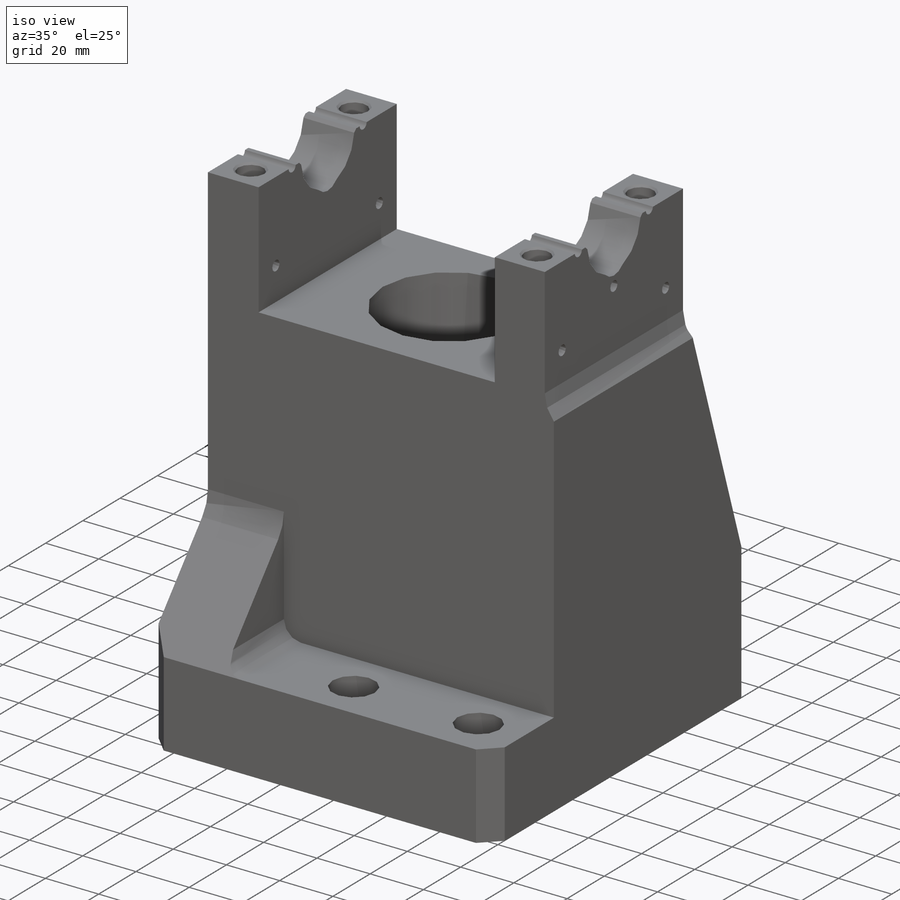
[diagram: iso view]
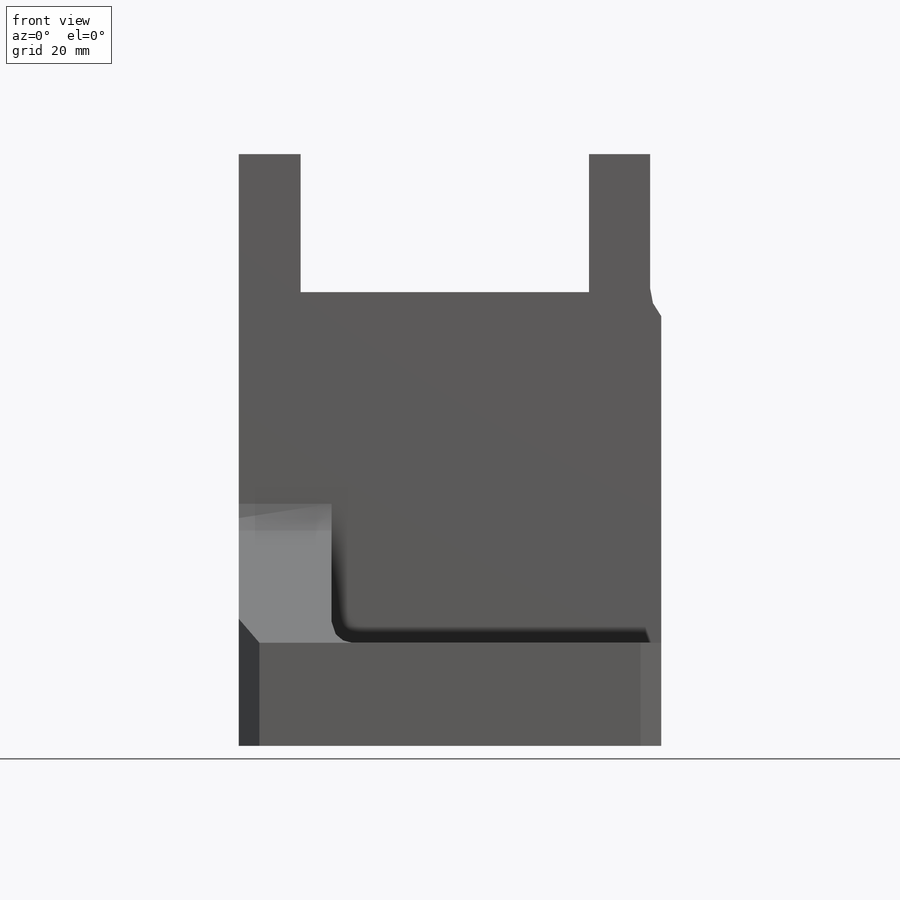
[diagram: front view]
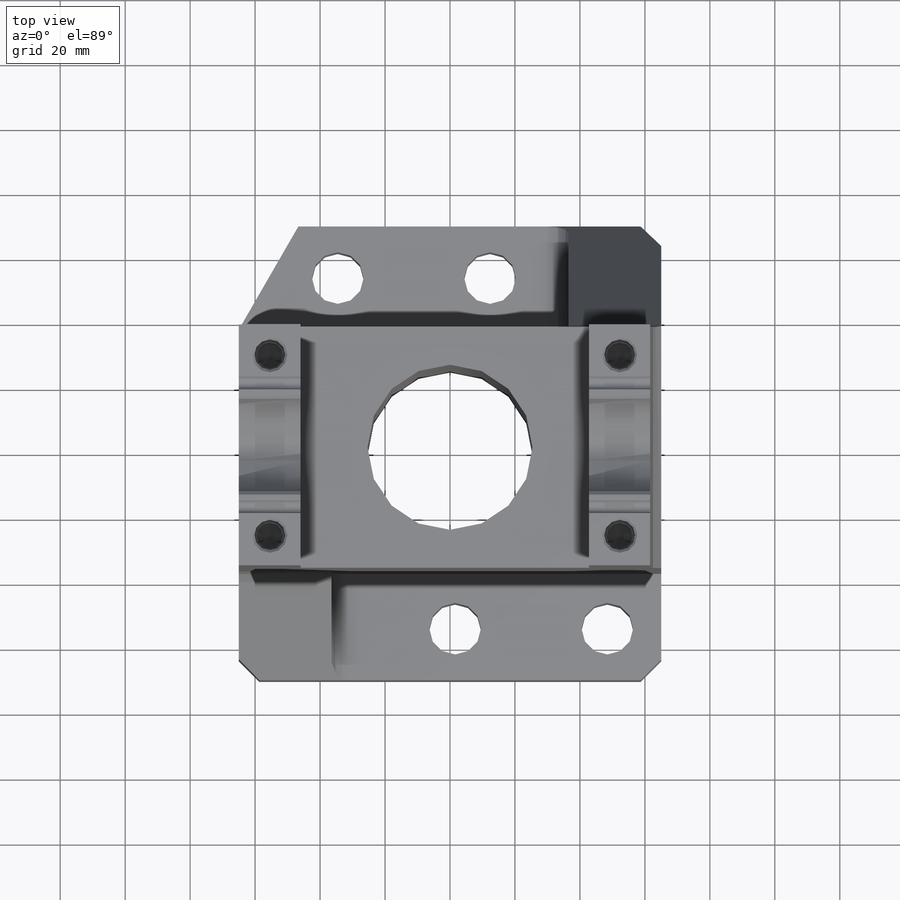
[diagram: top view]
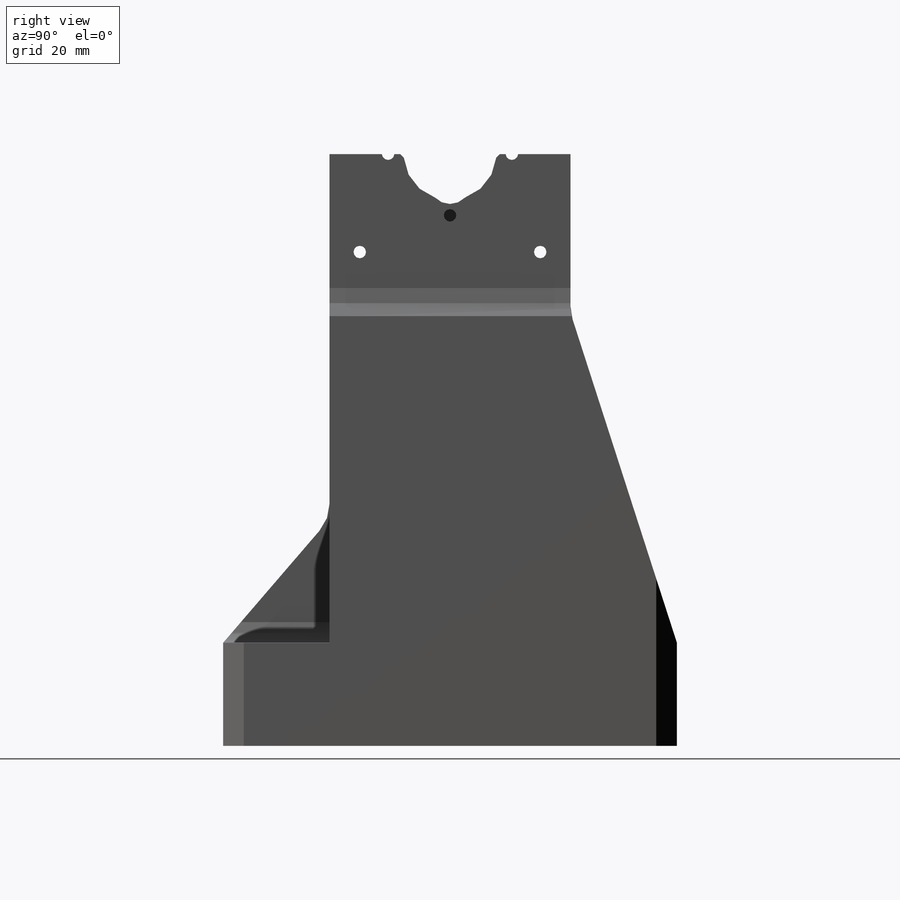
[diagram: right view]
SOLIDWORKS PART (.sldprt)
format: sldprt  version: not decoded by parser v0  size: 566,784 bytes
history: native  units: mm
features: sketch x17, hole x5, cut_extrude x4, extrude x3, chamfer x3, fillet x2, material x1 + 1 further entry (+13 scaffold rows collapsed)
feature tree (49):
  scaffold x13  (default folders/planes/origin — collapsed)
  material  "2024-T351 AL"
  "Origin"  ID=-1
  sketch  "Sketch2"  dims[c1.D1=28.575mm c1.D3=28.575mm c1.D7=14.2875mm c1.D6=14.2875mm c1.D2=0.127mm c2.D3=37.084mm c2.D4=37.084mm c2.D5=150.5712mm c2.D6=182.3212mm c2.D7=69.85mm c3.D5=31.75mm c3.D6=182.3212mm]
  extrude  "Extrude1"  Depth=130.048mm
  sketch  "Sketch3"  dims[D1=50.8mm]
  cut_extrude  "Extrude2"  [1 undecoded]
  sketch  "Sketch4"  dims[D1=101.6mm]
  extrude  "Extrude3"  Depth=28.575mm
  sketch  "Sketch7"  dims[D1=38.1mm]
  extrude  "Extrude4"  Depth=28.575mm
  sketch  "Sketch8"  dims[c1.D1=139.7mm c1.D2=~64.098159mm c1.D3=19.05mm c1.D4=~46.899841mm c2.D2=88.773mm]
  cut_extrude  "Extrude5"  [1 undecoded]
  hole  "5/8 (0.625) Diameter Hole1"  Diameter=15.875mm Depth=182.1942mm
  sketch  "Sketch10"  dims[c1.D1=15.875mm c1.D2=107.95mm c2.D1=53.975mm c2.D2=53.975mm c2.D3=30.48mm c2.D4=46.863mm c2.D5=36.1188mm]
  sketch  "Sketch9"  dims[hole-wizard template sketch: 60 standard entries collapsed; hole parameters kept: c18.Thru Hole Depth=182.1942mm]
  sketch  "Sketch11"  dims[D1=6.35mm D2=13.97mm D3=13.97mm]
  cut_extrude  "Extrude6"  Depth=15.24mm
  fillet  "Fillet1"  Radius=6.35mm
  chamfer  "Chamfer1"  Distance=6.35mm Angle=45deg
  chamfer  "Chamfer2"  Distance=31.75mm Angle=30deg
  sketch  "Sketch12"  dims[c1.D2=12.7mm c1.D3=12.7mm c1.D1=3.429mm c2.D3=140.97mm]
  cut_extrude  "Extrude7"  [1 undecoded]
  hole  "3/8-16 Tapped Hole1"  Diameter=7.9375mm Depth=30.48mm
  sketch  "Sketch14"  dims[D1=55.5498mm D2=107.696mm]
  sketch  "Sketch13"  dims[hole-wizard template sketch: 27 standard entries collapsed; hole parameters kept: c8.Tap Drill Depth=30.48mm c8.Thread Major Dia.=9.525mm c8.Thread Depth=21.59mm c8.Near C'Sink Dia.=10.922mm c8.D6=~4.399409mm c8.Near C'Sink Angle=90.0deg c8.D7=~14.816244mm c8.Drill Angle=118.0deg]
  hole  "#24 (0.152) Diameter Hole1"  Diameter=3.8608mm Depth=18.796mm
  sketch  "Sketch17"  dims[D1=19.05mm]
  sketch  "Sketch16"  dims[hole-wizard template sketch: 59 standard entries collapsed; hole parameters kept: c18.Thru Hole Dia.=3.8608mm c18.Thru Hole Depth=18.796mm]
  hole  "#24 (0.152) Diameter Hole2"  Diameter=3.8608mm Depth=126.619mm
  sketch  "Sketch19"  dims[D1=55.5498mm D2=30.1498mm]
  sketch  "Sketch18"  dims[hole-wizard template sketch: 59 standard entries collapsed; hole parameters kept: c18.Thru Hole Dia.=3.8608mm c18.Thru Hole Depth=126.619mm]
  fillet  "Fillet2"  Radius=12.7mm
  hole  "1/2 (0.5) Diameter Hole1"  Diameter=12.7mm Depth=126.619mm
  sketch  "Sketch21"  dims[D1=9.144mm]
  sketch  "Sketch20"  dims[hole-wizard template sketch: 60 standard entries collapsed; hole parameters kept: c18.Thru Hole Depth=126.619mm]
  chamfer  "Chamfer3"  Distance=1.016mm Angle=45deg
decode coverage: 31 of 34 modeling features carry decoded parameters; 1 rows unclassified (native names shown)
note: ~ marks probable driven/reference dimensions
note: 3 parameter values undecoded
summary: Diameter pulled from absorbed wizard sketch | no parameter record found for 3 features
note: suppression state not decoded; provenance and decode notes live in map.json
